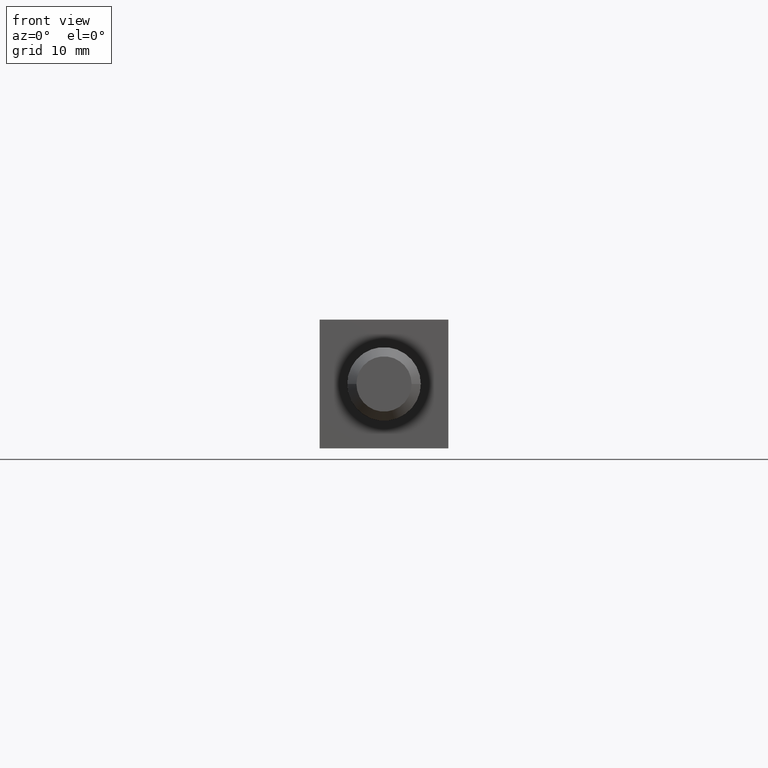
[diagram: clean part render]
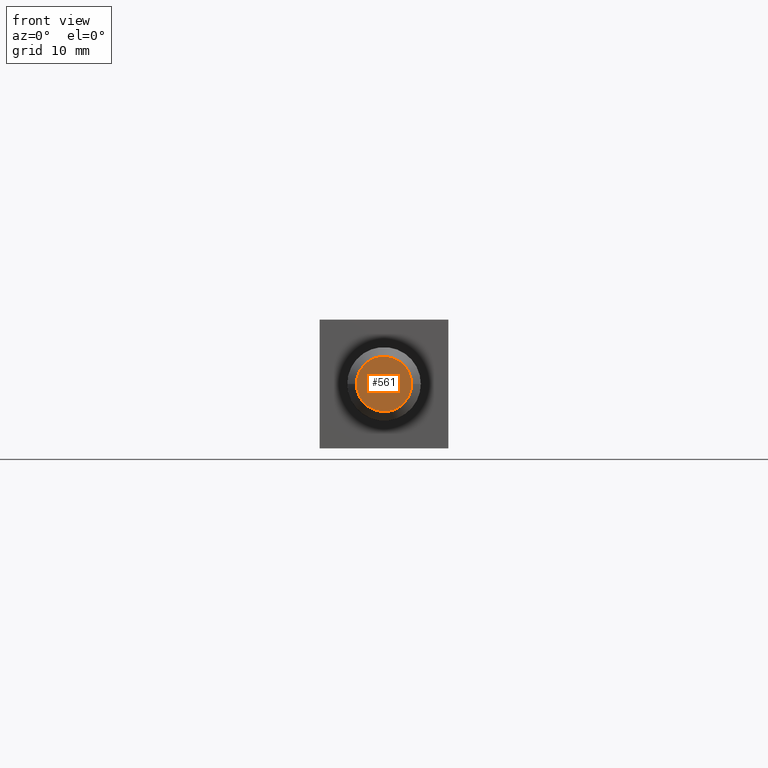
[diagram: same view with one face highlighted and labeled with its STEP entity id]
A machine part, front view. The second image highlights one B-rep face of the part: STEP entity #561.
In plain terms, the highlighted planar face has unit normal (-0, 1, 0).
Its self-contained STEP definition (entity closure, byte-faithful):
#561 = ADVANCED_FACE ( 'NONE', ( #11741 ), #11481, .F. ) ;
#1743 = ORIENTED_EDGE ( 'NONE', *, *, #7779, .F. ) ;
#2005 = DIRECTION ( 'NONE',  ( -1.000000000000000000, 0.0000000000000000000, 0.0000000000000000000 ) ) ;
#2167 = CARTESIAN_POINT ( 'NONE',  ( 2.249639673992787800E-032, -8.999999999999994700, 0.0000000000000000000 ) ) ;
#2170 = CARTESIAN_POINT ( 'NONE',  ( 3.000000000000001800, -8.999999999999994700, 4.286263797015742500E-016 ) ) ;
#2845 = ORIENTED_EDGE ( 'NONE', *, *, #7347, .F. ) ;
#2957 = DIRECTION ( 'NONE',  ( -1.000000000000000000, -1.224646799147353000E-016, 0.0000000000000000000 ) ) ;
#3062 = VERTEX_POINT ( 'NONE', #11872 ) ;
#3566 = VERTEX_POINT ( 'NONE', #2170 ) ;
#4532 = CIRCLE ( 'NONE', #11813, 3.000000000000000400 ) ;
#4649 = AXIS2_PLACEMENT_3D ( 'NONE', #5820, #6786, #2005 ) ;
#4741 = DIRECTION ( 'NONE',  ( -1.224646799147353000E-016, 1.000000000000000000, -0.0000000000000000000 ) ) ;
#5078 = EDGE_LOOP ( 'NONE', ( #2845, #1743 ) ) ;
#5820 = CARTESIAN_POINT ( 'NONE',  ( 1.102182119232616900E-015, -8.999999999999994700, 0.0000000000000000000 ) ) ;
#6786 = DIRECTION ( 'NONE',  ( -1.224646799147353000E-016, 1.000000000000000000, -0.0000000000000000000 ) ) ;
#7347 = EDGE_CURVE ( 'NONE', #3062, #3566, #8777, .T. ) ;
#7779 = EDGE_CURVE ( 'NONE', #3566, #3062, #4532, .T. ) ;
#8777 = CIRCLE ( 'NONE', #4649, 3.000000000000000400 ) ;
#11019 = AXIS2_PLACEMENT_3D ( 'NONE', #2167, #11652, #2957 ) ;
#11481 = PLANE ( 'NONE',  #11019 ) ;
#11500 = CARTESIAN_POINT ( 'NONE',  ( 1.102182119232616900E-015, -8.999999999999994700, 0.0000000000000000000 ) ) ;
#11540 = DIRECTION ( 'NONE',  ( -1.000000000000000000, 0.0000000000000000000, 0.0000000000000000000 ) ) ;
#11652 = DIRECTION ( 'NONE',  ( -1.224646799147353000E-016, 1.000000000000000000, 0.0000000000000000000 ) ) ;
#11741 = FACE_OUTER_BOUND ( 'NONE', #5078, .T. ) ;
#11813 = AXIS2_PLACEMENT_3D ( 'NONE', #11500, #4741, #11540 ) ;
#11872 = CARTESIAN_POINT ( 'NONE',  ( -2.999999999999999100, -8.999999999999994700, 0.0000000000000000000 ) ) ;